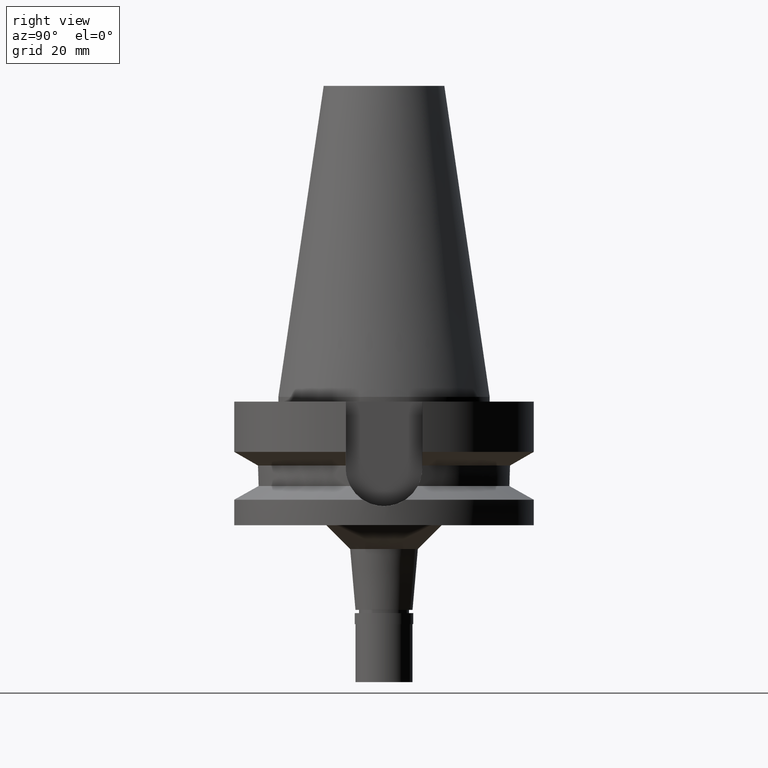
[diagram: clean part render]
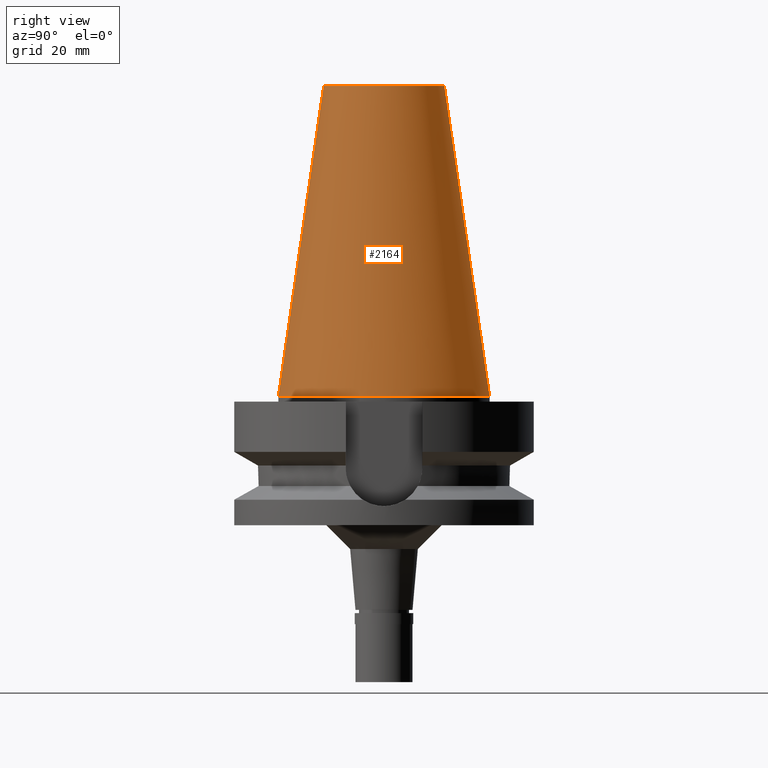
[diagram: same view with one face highlighted and labeled with its STEP entity id]
A machine part, right view. The second image highlights one B-rep face of the part: STEP entity #2164.
In plain terms, the highlighted conical surface has half-angle 8.297 deg.
Its self-contained STEP definition (entity closure, byte-faithful):
#77 = DIRECTION ( 'NONE',  ( 0.0000000000000000000, 0.0000000000000000000, -1.000000000000000000 ) ) ;
#248 = CARTESIAN_POINT ( 'NONE',  ( 0.0000000000000000000, 1.625106302469000024E-14, 2.842170943039999687E-14 ) ) ;
#336 = AXIS2_PLACEMENT_3D ( 'NONE', #248, #2795, #1162 ) ;
#434 = AXIS2_PLACEMENT_3D ( 'NONE', #2800, #1850, #1155 ) ;
#441 = EDGE_CURVE ( 'NONE', #1643, #1807, #1478, .T. ) ;
#484 = ORIENTED_EDGE ( 'NONE', *, *, #2771, .T. ) ;
#496 = CARTESIAN_POINT ( 'NONE',  ( 0.0000000000000000000, 1.625106302469000024E-14, 65.40000000000000568 ) ) ;
#595 = VERTEX_POINT ( 'NONE', #2721 ) ;
#759 = ORIENTED_EDGE ( 'NONE', *, *, #991, .F. ) ;
#991 = EDGE_CURVE ( 'NONE', #595, #1807, #1051, .T. ) ;
#1051 = CIRCLE ( 'NONE', #336, 22.22500000000000142 ) ;
#1139 = VECTOR ( 'NONE', #2724, 1000.000000000000114 ) ;
#1155 = DIRECTION ( 'NONE',  ( 0.0000000000000000000, -1.000000000000000000, 0.0000000000000000000 ) ) ;
#1162 = DIRECTION ( 'NONE',  ( 0.0000000000000000000, 1.000000000000000000, 0.0000000000000000000 ) ) ;
#1303 = CONICAL_SURFACE ( 'NONE', #434, 17.45633449714999941, 0.1448099680379422438 ) ;
#1348 = CARTESIAN_POINT ( 'NONE',  ( 0.0000000000000000000, 12.68766899429999917, 65.40000000000000568 ) ) ;
#1367 = CARTESIAN_POINT ( 'NONE',  ( 0.0000000000000000000, 12.68766899429999917, 65.40000000000000568 ) ) ;
#1478 = LINE ( 'NONE', #2426, #1671 ) ;
#1563 = ORIENTED_EDGE ( 'NONE', *, *, #441, .T. ) ;
#1613 = CARTESIAN_POINT ( 'NONE',  ( 0.0000000000000000000, -22.22500000000000142, 6.394884621841000123E-14 ) ) ;
#1643 = VERTEX_POINT ( 'NONE', #2665 ) ;
#1671 = VECTOR ( 'NONE', #1681, 1000.000000000000114 ) ;
#1681 = DIRECTION ( 'NONE',  ( 0.0000000000000000000, -0.1443043893539925626, -0.9895333461855498891 ) ) ;
#1682 = DIRECTION ( 'NONE',  ( 0.0000000000000000000, 1.000000000000000000, 0.0000000000000000000 ) ) ;
#1716 = EDGE_LOOP ( 'NONE', ( #484, #1563, #759, #1731 ) ) ;
#1731 = ORIENTED_EDGE ( 'NONE', *, *, #2633, .F. ) ;
#1791 = LINE ( 'NONE', #1367, #1139 ) ;
#1807 = VERTEX_POINT ( 'NONE', #1613 ) ;
#1850 = DIRECTION ( 'NONE',  ( 0.0000000000000000000, 0.0000000000000000000, -1.000000000000000000 ) ) ;
#1902 = AXIS2_PLACEMENT_3D ( 'NONE', #496, #77, #1682 ) ;
#1990 = VERTEX_POINT ( 'NONE', #1348 ) ;
#2164 = ADVANCED_FACE ( 'NONE', ( #2521 ), #1303, .T. ) ;
#2426 = CARTESIAN_POINT ( 'NONE',  ( 0.0000000000000000000, -12.68766899429999917, 65.40000000000000568 ) ) ;
#2521 = FACE_OUTER_BOUND ( 'NONE', #1716, .T. ) ;
#2633 = EDGE_CURVE ( 'NONE', #1990, #595, #1791, .T. ) ;
#2665 = CARTESIAN_POINT ( 'NONE',  ( 0.0000000000000000000, -12.68766899429999917, 65.40000000000000568 ) ) ;
#2721 = CARTESIAN_POINT ( 'NONE',  ( 0.0000000000000000000, 22.22500000000000142, 6.394884621841000123E-14 ) ) ;
#2724 = DIRECTION ( 'NONE',  ( 0.0000000000000000000, 0.1443043893539925626, -0.9895333461855498891 ) ) ;
#2771 = EDGE_CURVE ( 'NONE', #1990, #1643, #2823, .T. ) ;
#2795 = DIRECTION ( 'NONE',  ( 0.0000000000000000000, 0.0000000000000000000, -1.000000000000000000 ) ) ;
#2800 = CARTESIAN_POINT ( 'NONE',  ( 0.0000000000000000000, 1.625106302469000024E-14, 32.70000000000000284 ) ) ;
#2823 = CIRCLE ( 'NONE', #1902, 12.68766899429999917 ) ;